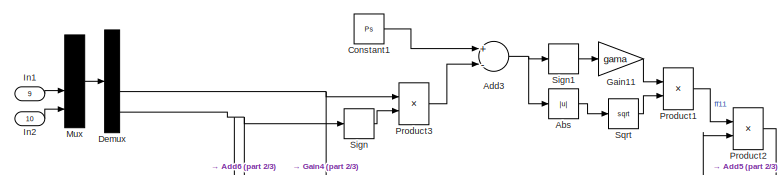
[diagram: root canvas - part 1/3, top left region]
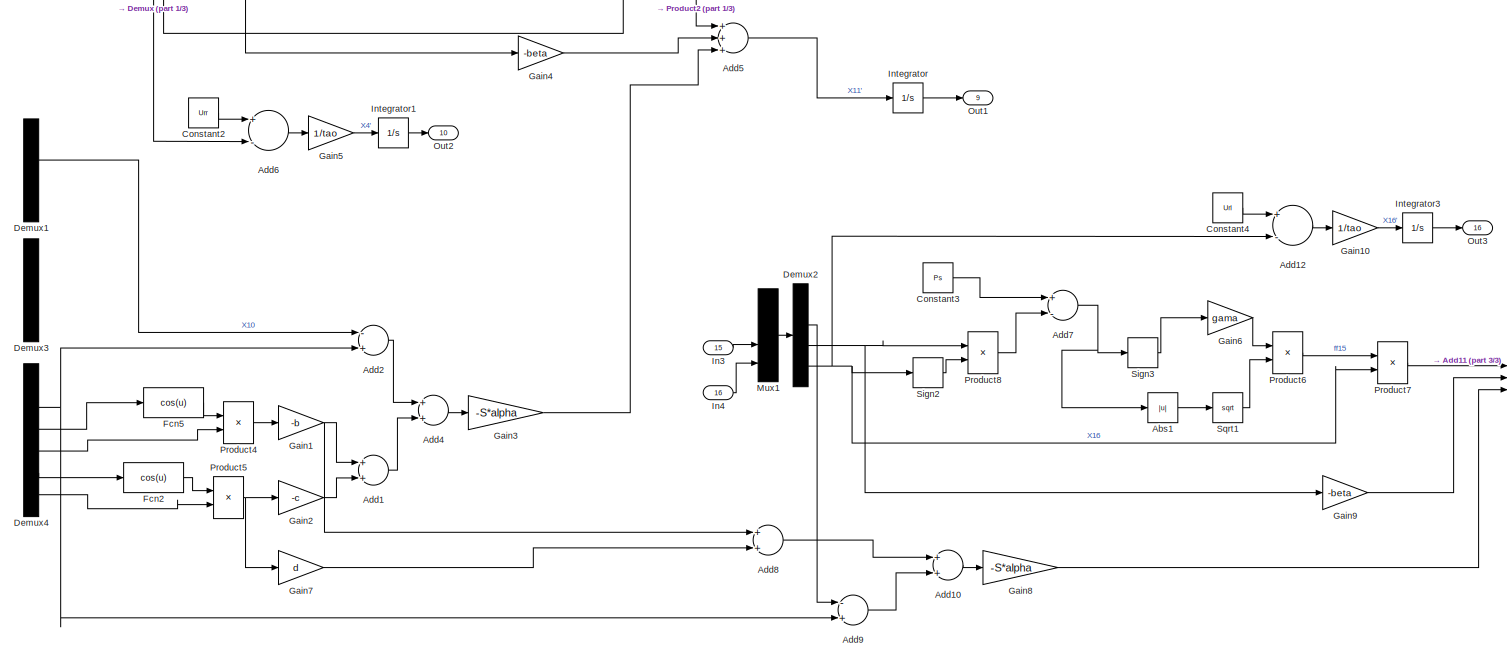
[diagram: root canvas - part 2/3, most of the canvas]
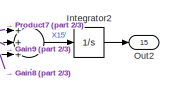
[diagram: root canvas - part 3/3, middle right region]
MODEL slx_006cf8d9077d
KIND model
CONFIG AbsTol = auto
CONFIG FixedStep = auto
CONFIG MaxStep = auto
CONFIG MinStep = auto
CONFIG RelTol = 1e-3
CONFIG SampleTimeConstraint = Unconstrained
CONFIG Solver = VariableStepAuto
CONFIG SolverMode = Auto
CONFIG SolverName = VariableStepAuto
CONFIG StartTime = 0.0
CONFIG StopTime = 10.0
BLOCK [Abs] Abs
  SaturateOnIntegerOverflow = off
BLOCK [Abs] Abs1
  SaturateOnIntegerOverflow = off
BLOCK [Sum] Add1
  InputSameDT = off
  OutDataTypeStr = Inherit: Inherit via internal rule
  Ports = [2, 1]
  SaturateOnIntegerOverflow = off
BLOCK [Sum] Add10
  InputSameDT = off
  OutDataTypeStr = Inherit: Inherit via internal rule
  Ports = [2, 1]
  SaturateOnIntegerOverflow = off
BLOCK [Sum] Add11
  InputSameDT = off
  Inputs = +++
  OutDataTypeStr = Inherit: Inherit via internal rule
  Ports = [3, 1]
  SaturateOnIntegerOverflow = off
BLOCK [Sum] Add12
  InputSameDT = off
  Inputs = +-
  OutDataTypeStr = Inherit: Inherit via internal rule
  Ports = [2, 1]
  SaturateOnIntegerOverflow = off
BLOCK [Sum] Add2
  InputSameDT = off
  Inputs = -+
  OutDataTypeStr = Inherit: Inherit via internal rule
  Ports = [2, 1]
  SaturateOnIntegerOverflow = off
BLOCK [Sum] Add3
  InputSameDT = off
  Inputs = +-
  OutDataTypeStr = Inherit: Inherit via internal rule
  Ports = [2, 1]
  SaturateOnIntegerOverflow = off
BLOCK [Sum] Add4
  InputSameDT = off
  OutDataTypeStr = Inherit: Inherit via internal rule
  Ports = [2, 1]
  SaturateOnIntegerOverflow = off
BLOCK [Sum] Add5
  InputSameDT = off
  Inputs = +++
  OutDataTypeStr = Inherit: Inherit via internal rule
  Ports = [3, 1]
  SaturateOnIntegerOverflow = off
BLOCK [Sum] Add6
  InputSameDT = off
  Inputs = +-
  OutDataTypeStr = Inherit: Inherit via internal rule
  Ports = [2, 1]
  SaturateOnIntegerOverflow = off
BLOCK [Sum] Add7
  InputSameDT = off
  Inputs = +-
  OutDataTypeStr = Inherit: Inherit via internal rule
  Ports = [2, 1]
  SaturateOnIntegerOverflow = off
BLOCK [Sum] Add8
  InputSameDT = off
  OutDataTypeStr = Inherit: Inherit via internal rule
  Ports = [2, 1]
  SaturateOnIntegerOverflow = off
BLOCK [Sum] Add9
  InputSameDT = off
  Inputs = -+
  OutDataTypeStr = Inherit: Inherit via internal rule
  Ports = [2, 1]
  SaturateOnIntegerOverflow = off
BLOCK [Constant] Constant1
  Value = Ps
BLOCK [Constant] Constant2
  Value = Urr
BLOCK [Constant] Constant3
  Value = Ps
BLOCK [Constant] Constant4
  Value = Url
BLOCK [Demux] Demux
  DisplayOption = bar
  Ports = [1, 4]
BLOCK [Demux] Demux1
  DisplayOption = bar
  Ports = [1, 4]
BLOCK [Demux] Demux2
  DisplayOption = bar
  Ports = [1, 4]
BLOCK [Demux] Demux3
  DisplayOption = bar
  Ports = [1, 4]
BLOCK [Demux] Demux4
  DisplayOption = bar
  Outputs = 6
  Ports = [1, 6]
BLOCK [Fcn] Fcn2
  Expr = cos(u)
BLOCK [Fcn] Fcn5
  Expr = cos(u)
BLOCK [Gain] Gain1
  Gain = -b
  OutDataTypeStr = Inherit: Inherit via internal rule
  ParamDataTypeStr = Inherit: Inherit via internal rule
  SaturateOnIntegerOverflow = off
BLOCK [Gain] Gain10
  Gain = 1/tao
  OutDataTypeStr = Inherit: Inherit via internal rule
  ParamDataTypeStr = Inherit: Inherit via internal rule
  SaturateOnIntegerOverflow = off
BLOCK [Gain] Gain11
  Gain = gama
  OutDataTypeStr = Inherit: Inherit via internal rule
  ParamDataTypeStr = Inherit: Inherit via internal rule
  SaturateOnIntegerOverflow = off
BLOCK [Gain] Gain2
  Gain = -c
  OutDataTypeStr = Inherit: Inherit via internal rule
  ParamDataTypeStr = Inherit: Inherit via internal rule
  SaturateOnIntegerOverflow = off
BLOCK [Gain] Gain3
  Gain = -S*alpha
  OutDataTypeStr = Inherit: Inherit via internal rule
  ParamDataTypeStr = Inherit: Inherit via internal rule
  SaturateOnIntegerOverflow = off
BLOCK [Gain] Gain4
  Gain = -beta
  OutDataTypeStr = Inherit: Inherit via internal rule
  ParamDataTypeStr = Inherit: Inherit via internal rule
  SaturateOnIntegerOverflow = off
BLOCK [Gain] Gain5
  Gain = 1/tao
  OutDataTypeStr = Inherit: Inherit via internal rule
  ParamDataTypeStr = Inherit: Inherit via internal rule
  SaturateOnIntegerOverflow = off
BLOCK [Gain] Gain6
  Gain = gama
  OutDataTypeStr = Inherit: Inherit via internal rule
  ParamDataTypeStr = Inherit: Inherit via internal rule
  SaturateOnIntegerOverflow = off
BLOCK [Gain] Gain7
  Gain = d
  OutDataTypeStr = Inherit: Inherit via internal rule
  ParamDataTypeStr = Inherit: Inherit via internal rule
  SaturateOnIntegerOverflow = off
BLOCK [Gain] Gain8
  Gain = -S*alpha
  OutDataTypeStr = Inherit: Inherit via internal rule
  ParamDataTypeStr = Inherit: Inherit via internal rule
  SaturateOnIntegerOverflow = off
BLOCK [Gain] Gain9
  Gain = -beta
  OutDataTypeStr = Inherit: Inherit via internal rule
  ParamDataTypeStr = Inherit: Inherit via internal rule
  SaturateOnIntegerOverflow = off
BLOCK [Inport] In1
  IconDisplay = Port number
  Port = 9
BLOCK [Inport] In2
  IconDisplay = Port number
  Port = 10
BLOCK [Inport] In3
  IconDisplay = Port number
  Port = 15
BLOCK [Inport] In4
  IconDisplay = Port number
  Port = 16
BLOCK [Integrator] Integrator
  Ports = [1, 1]
BLOCK [Integrator] Integrator1
  Ports = [1, 1]
BLOCK [Integrator] Integrator2
  Ports = [1, 1]
BLOCK [Integrator] Integrator3
  Ports = [1, 1]
BLOCK [Mux] Mux
  DisplayOption = bar
  Ports = [4, 1]
BLOCK [Mux] Mux1
  DisplayOption = bar
  Ports = [4, 1]
BLOCK [Outport] Out1
  IconDisplay = Port number
  Port = 9
BLOCK [Outport] Out2
  IconDisplay = Port number
  Port = 15
BLOCK [Outport] Out2 
  IconDisplay = Port number
  Port = 10
BLOCK [Outport] Out3
  IconDisplay = Port number
  Port = 16
BLOCK [Product] Product1
  InputSameDT = off
  OutDataTypeStr = Inherit: Inherit via internal rule
  Ports = [2, 1]
  RndMeth = Floor
  SaturateOnIntegerOverflow = off
BLOCK [Product] Product2
  InputSameDT = off
  OutDataTypeStr = Inherit: Inherit via internal rule
  Ports = [2, 1]
  RndMeth = Floor
  SaturateOnIntegerOverflow = off
BLOCK [Product] Product3
  InputSameDT = off
  OutDataTypeStr = Inherit: Inherit via internal rule
  Ports = [2, 1]
  RndMeth = Floor
  SaturateOnIntegerOverflow = off
BLOCK [Product] Product4
  InputSameDT = off
  OutDataTypeStr = Inherit: Inherit via internal rule
  Ports = [2, 1]
  RndMeth = Floor
  SaturateOnIntegerOverflow = off
BLOCK [Product] Product5
  InputSameDT = off
  OutDataTypeStr = Inherit: Inherit via internal rule
  Ports = [2, 1]
  RndMeth = Floor
  SaturateOnIntegerOverflow = off
BLOCK [Product] Product6
  InputSameDT = off
  OutDataTypeStr = Inherit: Inherit via internal rule
  Ports = [2, 1]
  RndMeth = Floor
  SaturateOnIntegerOverflow = off
BLOCK [Product] Product7
  InputSameDT = off
  OutDataTypeStr = Inherit: Inherit via internal rule
  Ports = [2, 1]
  RndMeth = Floor
  SaturateOnIntegerOverflow = off
BLOCK [Product] Product8
  InputSameDT = off
  OutDataTypeStr = Inherit: Inherit via internal rule
  Ports = [2, 1]
  RndMeth = Floor
  SaturateOnIntegerOverflow = off
BLOCK [Signum] Sign
BLOCK [Signum] Sign1
BLOCK [Signum] Sign2
BLOCK [Signum] Sign3
BLOCK [Sqrt] Sqrt
BLOCK [Sqrt] Sqrt1
LINE Abs1:1 -> Sqrt1:1
LINE Abs:1 -> Sqrt:1
LINE Add10:1 -> Gain8:1
LINE Add11:1 -> Integrator2:1
LINE Add12:1 -> Gain10:1
LINE Add1:1 -> Add4:2
LINE Add2:1 -> Add4:1
NET Add3:1 -> Abs:1, Sign1:1
LINE Add4:1 -> Gain3:1
LINE Add5:1 -> Integrator:1
LINE Add6:1 -> Gain5:1
NET Add7:1 -> Abs1:1, Sign3:1
LINE Add8:1 -> Add10:1
LINE Add9:1 -> Add10:2
LINE Constant1:1 -> Add3:1
LINE Constant2:1 -> Add6:1
LINE Constant3:1 -> Add7:1
LINE Constant4:1 -> Add12:1
LINE Demux1:2 -> Add2:1
LINE Demux2:2 -> Add9:1
NET Demux2:3 -> Gain9:1, Product8:1
NET Demux2:4 -> Add12:2, Product7:2, Sign2:1
NET Demux4:2 -> Add2:2, Add9:2
LINE Demux4:3 -> Fcn5:1
LINE Demux4:4 -> Product4:2
LINE Demux4:5 -> Fcn2:1
LINE Demux4:6 -> Product5:2
NET Demux:3 -> Gain4:1, Product3:1
NET Demux:4 -> Add6:2, Product2:2, Sign:1
LINE Fcn2:1 -> Product5:1
LINE Fcn5:1 -> Product4:1
LINE Gain10:1 -> Integrator3:1
LINE Gain11:1 -> Product1:1
NET Gain1:1 -> Add1:1, Add8:1
LINE Gain2:1 -> Add1:2
LINE Gain3:1 -> Add5:3
LINE Gain4:1 -> Add5:2
LINE Gain5:1 -> Integrator1:1
LINE Gain6:1 -> Product6:1
LINE Gain7:1 -> Add8:2
LINE Gain8:1 -> Add11:3
LINE Gain9:1 -> Add11:2
LINE In1:1 -> Mux:3
LINE In2:1 -> Mux:4
LINE In3:1 -> Mux1:3
LINE In4:1 -> Mux1:4
LINE Integrator1:1 -> Out2 :1
LINE Integrator2:1 -> Out2:1
LINE Integrator3:1 -> Out3:1
LINE Integrator:1 -> Out1:1
LINE Mux1:1 -> Demux2:1
LINE Mux:1 -> Demux:1
LINE Product1:1 -> Product2:1
LINE Product2:1 -> Add5:1
LINE Product3:1 -> Add3:2
LINE Product4:1 -> Gain1:1
NET Product5:1 -> Gain2:1, Gain7:1
LINE Product6:1 -> Product7:1
LINE Product7:1 -> Add11:1
LINE Product8:1 -> Add7:2
LINE Sign1:1 -> Gain11:1
LINE Sign2:1 -> Product8:2
LINE Sign3:1 -> Gain6:1
LINE Sign:1 -> Product3:2
LINE Sqrt1:1 -> Product6:2
LINE Sqrt:1 -> Product1:2
note: NET lines group one-source signal fan-out (src -> all destinations, sorted); 1:1 wires keep LINE
